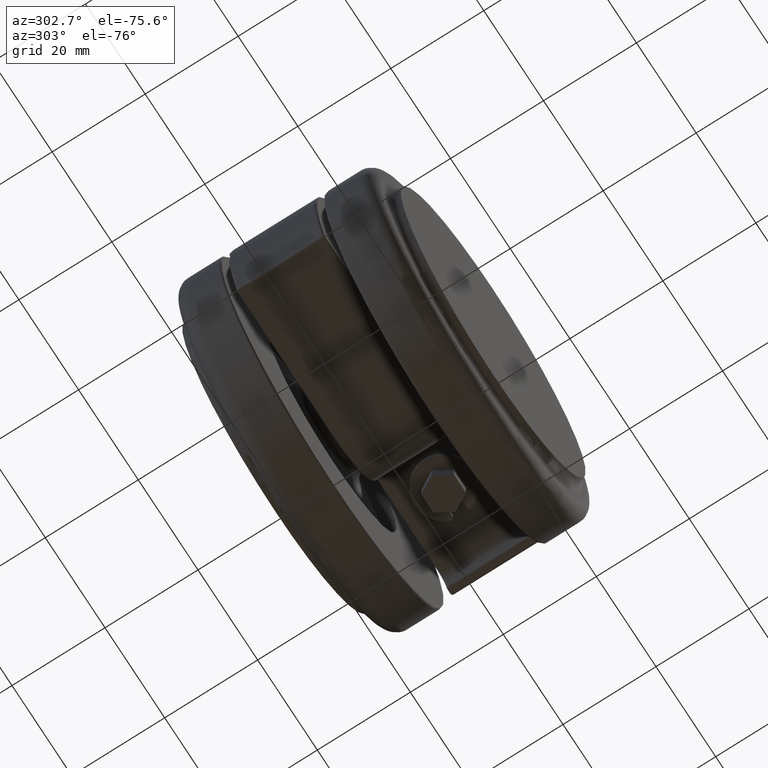
[diagram: clean part render]
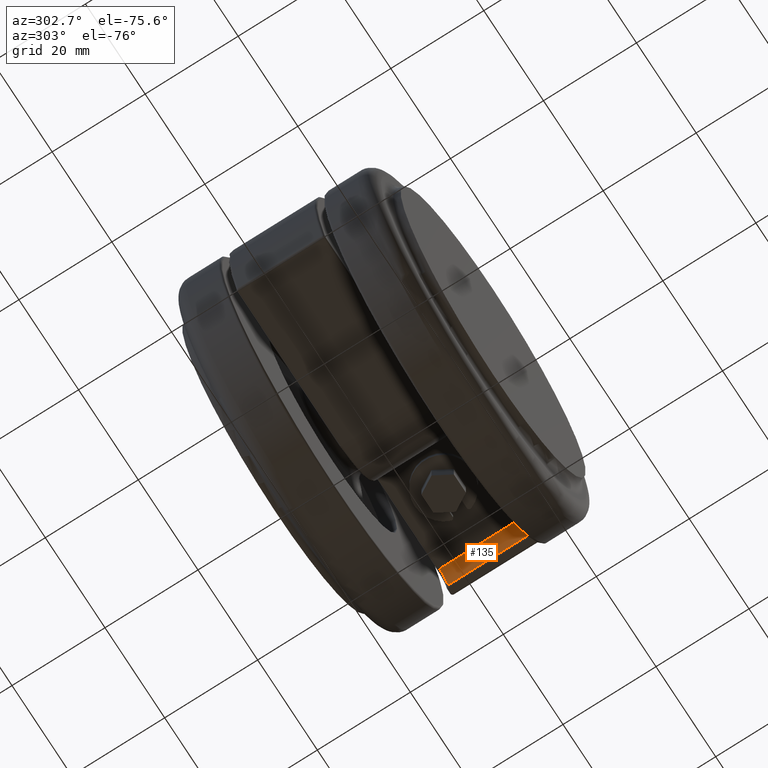
[diagram: same view with one face highlighted and labeled with its STEP entity id]
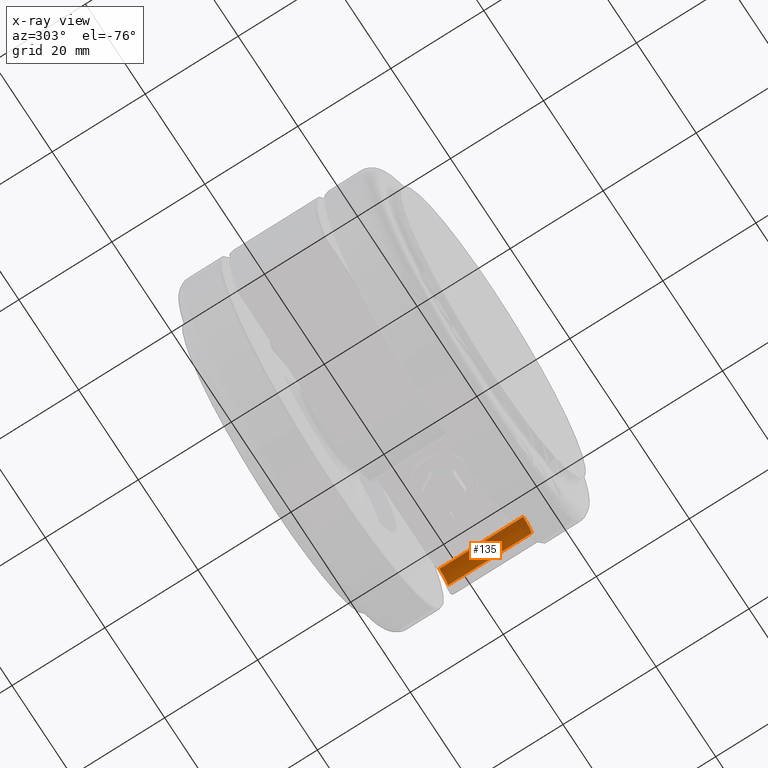
[diagram: x-ray of the same camera — body ghosted, the highlighted face saturated]
A machine part, auxiliary view. The second image highlights one B-rep face of the part: STEP entity #135.
The next image is the same camera in x-ray: the body ghosted, the highlighted face saturated — about 9% of this face is hidden behind the body in this view.
In plain terms, the highlighted cylindrical surface (edge-blend (fillet) strip) has radius 2.8866 mm, axis along (0, -1, 0).
Its self-contained STEP definition (entity closure, byte-faithful):
#37 = AXIS2_PLACEMENT_3D ( 'NONE', #3501, #3441, #3423 ) ;
#86 = VECTOR ( 'NONE', #892, 1000.000000000000000 ) ;
#135 = ADVANCED_FACE ( 'NONE', ( #2722 ), #1824, .F. ) ;
#399 = CARTESIAN_POINT ( 'NONE',  ( 15.46826598731139900, -8.999999999999788600, -40.07382015056489900 ) ) ;
#761 = AXIS2_PLACEMENT_3D ( 'NONE', #2768, #935, #3079 ) ;
#834 = VERTEX_POINT ( 'NONE', #399 ) ;
#852 = ORIENTED_EDGE ( 'NONE', *, *, #3618, .T. ) ;
#892 = DIRECTION ( 'NONE',  ( 0.0000000000000000000, -1.000000000000000000, 0.0000000000000000000 ) ) ;
#935 = DIRECTION ( 'NONE',  ( -0.0000000000000000000, -1.000000000000000000, -0.0000000000000000000 ) ) ;
#1096 = EDGE_CURVE ( 'NONE', #2510, #2166, #3553, .T. ) ;
#1169 = EDGE_CURVE ( 'NONE', #2166, #834, #2013, .T. ) ;
#1177 = VECTOR ( 'NONE', #2374, 1000.000000000000000 ) ;
#1336 = EDGE_CURVE ( 'NONE', #2510, #1744, #2336, .T. ) ;
#1378 = CARTESIAN_POINT ( 'NONE',  ( 12.61329079872222200, 990.5000000000000000, -40.50000000000000000 ) ) ;
#1599 = CARTESIAN_POINT ( 'NONE',  ( 12.61329079872222200, -8.999999999999788600, -37.61339081420354800 ) ) ;
#1671 = CARTESIAN_POINT ( 'NONE',  ( 12.61329079872222200, 9.000000000000230900, -37.61339081420354800 ) ) ;
#1689 = DIRECTION ( 'NONE',  ( 0.0000000000000000000, 0.0000000000000000000, -1.000000000000000000 ) ) ;
#1744 = VERTEX_POINT ( 'NONE', #1599 ) ;
#1824 = CYLINDRICAL_SURFACE ( 'NONE', #3686, 2.886609185796432000 ) ;
#2013 = LINE ( 'NONE', #2942, #1177 ) ;
#2166 = VERTEX_POINT ( 'NONE', #2300 ) ;
#2300 = CARTESIAN_POINT ( 'NONE',  ( 15.46826598731139900, 9.000000000000230900, -40.07382015056489900 ) ) ;
#2336 = LINE ( 'NONE', #3934, #86 ) ;
#2374 = DIRECTION ( 'NONE',  ( 0.0000000000000000000, -1.000000000000000000, 0.0000000000000000000 ) ) ;
#2387 = ORIENTED_EDGE ( 'NONE', *, *, #1169, .T. ) ;
#2510 = VERTEX_POINT ( 'NONE', #1671 ) ;
#2618 = EDGE_LOOP ( 'NONE', ( #2387, #852, #3100, #2769 ) ) ;
#2722 = FACE_OUTER_BOUND ( 'NONE', #2618, .T. ) ;
#2768 = CARTESIAN_POINT ( 'NONE',  ( 12.61329079872222200, -8.999999999999788600, -40.50000000000000000 ) ) ;
#2769 = ORIENTED_EDGE ( 'NONE', *, *, #1096, .T. ) ;
#2896 = DIRECTION ( 'NONE',  ( 0.0000000000000000000, -1.000000000000000000, 0.0000000000000000000 ) ) ;
#2942 = CARTESIAN_POINT ( 'NONE',  ( 15.46826598731139900, 990.5000000000000000, -40.07382015056489900 ) ) ;
#3079 = DIRECTION ( 'NONE',  ( -6.009554339785650900E-016, 0.0000000000000000000, 1.000000000000000000 ) ) ;
#3100 = ORIENTED_EDGE ( 'NONE', *, *, #1336, .F. ) ;
#3423 = DIRECTION ( 'NONE',  ( -1.802866301935695000E-015, 0.0000000000000000000, -1.000000000000000000 ) ) ;
#3441 = DIRECTION ( 'NONE',  ( -0.0000000000000000000, 1.000000000000000000, -0.0000000000000000000 ) ) ;
#3501 = CARTESIAN_POINT ( 'NONE',  ( 12.61329079872222200, 9.000000000000230900, -40.50000000000000000 ) ) ;
#3553 = CIRCLE ( 'NONE', #37, 2.886609185796432000 ) ;
#3618 = EDGE_CURVE ( 'NONE', #834, #1744, #3897, .T. ) ;
#3686 = AXIS2_PLACEMENT_3D ( 'NONE', #1378, #2896, #1689 ) ;
#3897 = CIRCLE ( 'NONE', #761, 2.886609185796432000 ) ;
#3934 = CARTESIAN_POINT ( 'NONE',  ( 12.61329079872222200, 990.5000000000000000, -37.61339081420354800 ) ) ;